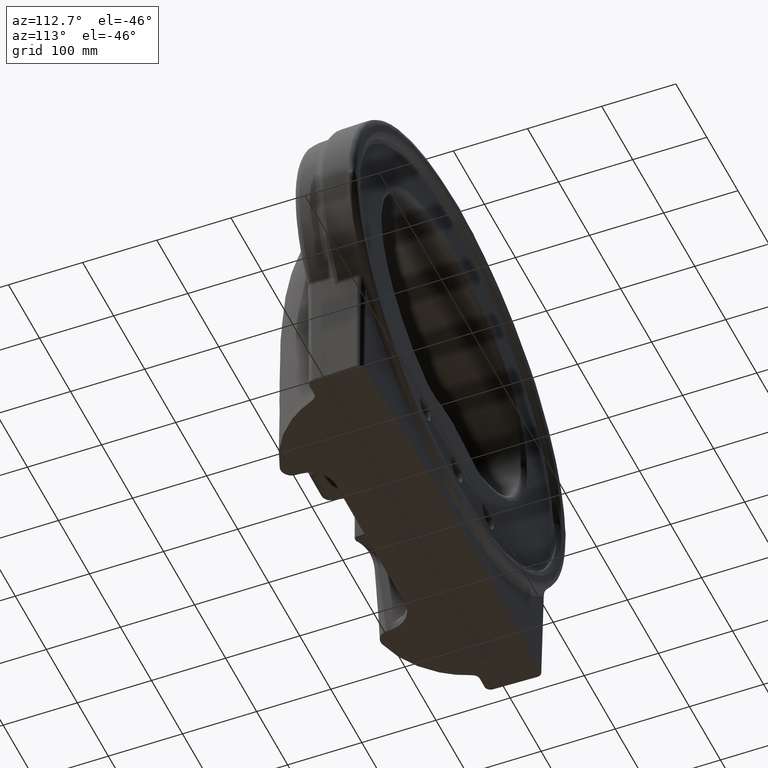
[diagram: clean part render]
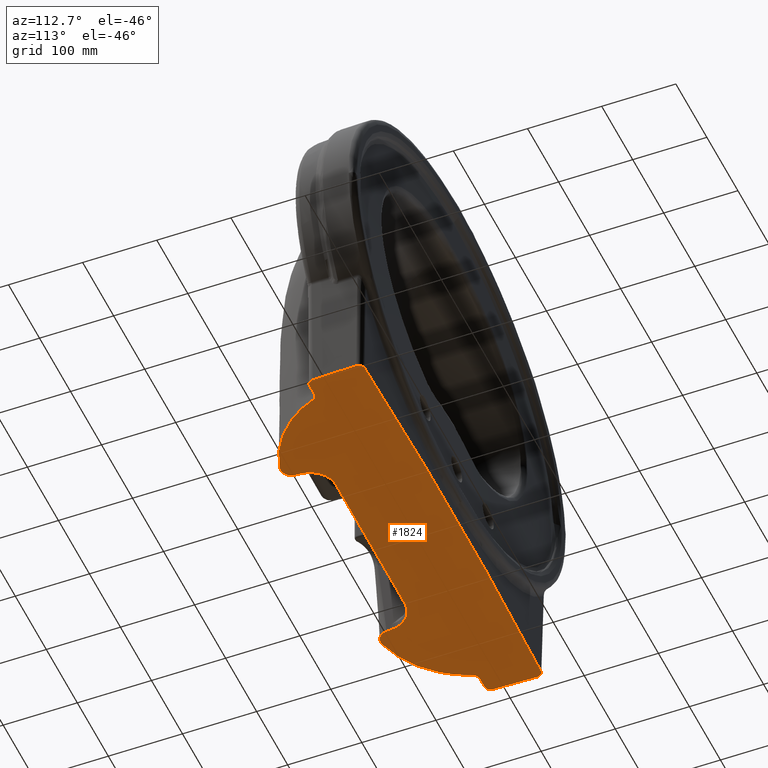
[diagram: same view with one face highlighted and labeled with its STEP entity id]
A machine part, auxiliary view. The second image highlights one B-rep face of the part: STEP entity #1824.
In plain terms, the highlighted planar face has unit normal (0, 0, -1).
Its self-contained STEP definition (entity closure, byte-faithful):
#179=ELLIPSE('',#7376,35.0485277993651,35.);
#180=ELLIPSE('',#7378,8.00121862435126,8.);
#181=ELLIPSE('',#7380,8.00121862435126,8.);
#182=ELLIPSE('',#7381,35.0485277993651,35.);
#328=PLANE('',#7382);
#404=LINE('',#18745,#553);
#417=LINE('',#21841,#566);
#427=LINE('',#22739,#576);
#428=LINE('',#22743,#577);
#429=LINE('',#22761,#578);
#430=LINE('',#22765,#579);
#431=LINE('',#22794,#580);
#553=VECTOR('',#7800,1.);
#566=VECTOR('',#7841,1.);
#576=VECTOR('',#7871,1.);
#577=VECTOR('',#7874,1.);
#578=VECTOR('',#7877,1.);
#579=VECTOR('',#7880,1.);
#580=VECTOR('',#7881,1.);
#1223=B_SPLINE_CURVE_WITH_KNOTS('',3,(#22711,#22712,#22713,#22714,#22715,
#22716,#22717,#22718,#22719,#22720),.UNSPECIFIED.,.F.,.F.,(4,2,2,2,4),(0.,
0.25,0.5,0.75,1.),.UNSPECIFIED.);
#1224=B_SPLINE_CURVE_WITH_KNOTS('',3,(#22722,#22723,#22724,#22725,#22726,
#22727,#22728,#22729,#22730),.UNSPECIFIED.,.F.,.F.,(4,1,1,1,1,1,4),(0.,
0.06984326587429,0.1592275618482,0.3379961537961,0.516764745744,0.6955333376919,
1.),.UNSPECIFIED.);
#1225=B_SPLINE_CURVE_WITH_KNOTS('',3,(#22732,#22733,#22734,#22735,#22736,
#22737),.UNSPECIFIED.,.F.,.F.,(4,2,4),(0.,0.5,1.),.UNSPECIFIED.);
#1226=B_SPLINE_CURVE_WITH_KNOTS('',3,(#22745,#22746,#22747,#22748,#22749,
#22750),.UNSPECIFIED.,.F.,.F.,(4,2,4),(0.,0.5,1.),.UNSPECIFIED.);
#1227=B_SPLINE_CURVE_WITH_KNOTS('',3,(#22754,#22755,#22756,#22757,#22758,
#22759),.UNSPECIFIED.,.F.,.F.,(4,2,4),(0.,0.5,1.),.UNSPECIFIED.);
#1228=B_SPLINE_CURVE_WITH_KNOTS('',3,(#22767,#22768,#22769,#22770,#22771,
#22772),.UNSPECIFIED.,.F.,.F.,(4,2,4),(0.,0.5,1.),.UNSPECIFIED.);
#1229=B_SPLINE_CURVE_WITH_KNOTS('',3,(#22774,#22775,#22776,#22777,#22778,
#22779,#22780,#22781,#22782),.UNSPECIFIED.,.F.,.F.,(4,1,1,1,1,1,4),(0.,
0.06984343802584,0.1592277174567,0.3379962763185,0.5167648351802,0.695533394042,
1.),.UNSPECIFIED.);
#1230=B_SPLINE_CURVE_WITH_KNOTS('',3,(#22784,#22785,#22786,#22787,#22788,
#22789,#22790,#22791,#22792,#22793),.UNSPECIFIED.,.F.,.F.,(4,2,2,2,4),(0.,
0.25,0.5,0.75,1.),.UNSPECIFIED.);
#1824=ADVANCED_FACE('',(#2289),#328,.T.);
#2289=FACE_OUTER_BOUND('',#2770,.T.);
#2770=EDGE_LOOP('',(#4154,#4155,#4156,#4157,#4158,#4159,#4160,#4161,#4162,
#4163,#4164,#4165,#4166,#4167,#4168,#4169,#4170,#4171,#4172,#4173));
#4154=ORIENTED_EDGE('',*,*,#6526,.T.);
#4155=ORIENTED_EDGE('',*,*,#6527,.T.);
#4156=ORIENTED_EDGE('',*,*,#6528,.T.);
#4157=ORIENTED_EDGE('',*,*,#6529,.T.);
#4158=ORIENTED_EDGE('',*,*,#6530,.T.);
#4159=ORIENTED_EDGE('',*,*,#6531,.T.);
#4160=ORIENTED_EDGE('',*,*,#6532,.T.);
#4161=ORIENTED_EDGE('',*,*,#6533,.F.);
#4162=ORIENTED_EDGE('',*,*,#6534,.T.);
#4163=ORIENTED_EDGE('',*,*,#6535,.F.);
#4164=ORIENTED_EDGE('',*,*,#6536,.T.);
#4165=ORIENTED_EDGE('',*,*,#6537,.F.);
#4166=ORIENTED_EDGE('',*,*,#6538,.T.);
#4167=ORIENTED_EDGE('',*,*,#6539,.F.);
#4168=ORIENTED_EDGE('',*,*,#6540,.T.);
#4169=ORIENTED_EDGE('',*,*,#6399,.T.);
#4170=ORIENTED_EDGE('',*,*,#6525,.T.);
#4171=ORIENTED_EDGE('',*,*,#6541,.F.);
#4172=ORIENTED_EDGE('',*,*,#6542,.T.);
#4173=ORIENTED_EDGE('',*,*,#6489,.F.);
#5600=VERTEX_POINT('',#18744);
#5601=VERTEX_POINT('',#18746);
#5650=VERTEX_POINT('',#21840);
#5651=VERTEX_POINT('',#21842);
#5668=VERTEX_POINT('',#22708);
#5669=VERTEX_POINT('',#22721);
#5670=VERTEX_POINT('',#22731);
#5671=VERTEX_POINT('',#22738);
#5672=VERTEX_POINT('',#22740);
#5673=VERTEX_POINT('',#22742);
#5674=VERTEX_POINT('',#22744);
#5675=VERTEX_POINT('',#22751);
#5676=VERTEX_POINT('',#22753);
#5677=VERTEX_POINT('',#22760);
#5678=VERTEX_POINT('',#22762);
#5679=VERTEX_POINT('',#22764);
#5680=VERTEX_POINT('',#22766);
#5681=VERTEX_POINT('',#22773);
#5682=VERTEX_POINT('',#22783);
#5683=VERTEX_POINT('',#22795);
#6399=EDGE_CURVE('',#5601,#5600,#404,.T.);
#6489=EDGE_CURVE('',#5650,#5651,#417,.T.);
#6525=EDGE_CURVE('',#5600,#5668,#179,.T.);
#6526=EDGE_CURVE('',#5650,#5669,#1223,.T.);
#6527=EDGE_CURVE('',#5669,#5670,#1224,.T.);
#6528=EDGE_CURVE('',#5670,#5671,#1225,.T.);
#6529=EDGE_CURVE('',#5671,#5672,#427,.T.);
#6530=EDGE_CURVE('',#5672,#5673,#180,.T.);
#6531=EDGE_CURVE('',#5673,#5674,#428,.T.);
#6532=EDGE_CURVE('',#5674,#5675,#1226,.T.);
#6533=EDGE_CURVE('',#5676,#5675,#7172,.T.);
#6534=EDGE_CURVE('',#5676,#5677,#1227,.T.);
#6535=EDGE_CURVE('',#5678,#5677,#429,.T.);
#6536=EDGE_CURVE('',#5678,#5679,#181,.T.);
#6537=EDGE_CURVE('',#5680,#5679,#430,.T.);
#6538=EDGE_CURVE('',#5680,#5681,#1228,.T.);
#6539=EDGE_CURVE('',#5682,#5681,#1229,.T.);
#6540=EDGE_CURVE('',#5682,#5601,#1230,.T.);
#6541=EDGE_CURVE('',#5683,#5668,#431,.T.);
#6542=EDGE_CURVE('',#5683,#5651,#182,.T.);
#7172=CIRCLE('',#7379,9002.499999999);
#7376=AXIS2_PLACEMENT_3D('',#22709,#7867,#7868);
#7378=AXIS2_PLACEMENT_3D('',#22741,#7872,#7873);
#7379=AXIS2_PLACEMENT_3D('',#22752,#7875,#7876);
#7380=AXIS2_PLACEMENT_3D('',#22763,#7878,#7879);
#7381=AXIS2_PLACEMENT_3D('',#22796,#7882,#7883);
#7382=AXIS2_PLACEMENT_3D('',#22797,#7884,#7885);
#7800=DIRECTION('',(-0.0524077225940177,0.998625771053656,-2.93760944746287E-009));
#7841=DIRECTION('',(0.0524075821519412,0.998625778424024,0.));
#7867=DIRECTION('',(0.,0.,1.));
#7868=DIRECTION('',(-0.986182030688047,-0.16566533236619,0.));
#7871=DIRECTION('',(-1.,-5.589523695181E-012,0.));
#7872=DIRECTION('',(0.,0.,-1.));
#7873=DIRECTION('',(1.,0.,0.));
#7874=DIRECTION('',(-0.0261809330582313,0.999657220623249,0.));
#7875=DIRECTION('',(0.,0.,1.));
#7876=DIRECTION('',(0.0315480222375593,0.999502237262578,0.));
#7877=DIRECTION('',(0.0261809330582313,0.999657220623249,0.));
#7878=DIRECTION('',(0.,0.,-1.));
#7879=DIRECTION('',(1.,0.,0.));
#7880=DIRECTION('',(1.,-5.1390893328E-012,0.));
#7881=DIRECTION('',(1.,0.,0.));
#7882=DIRECTION('',(0.,0.,1.));
#7883=DIRECTION('',(-0.986182030688052,0.165665332366158,0.));
#7884=DIRECTION('',(0.,0.,-1.));
#7885=DIRECTION('',(1.,0.,0.));
#18744=CARTESIAN_POINT('',(146.109128768837,4.03052607273993,-224.999999999999));
#18745=CARTESIAN_POINT('',(146.4426951448,-2.325559688682,-224.9999999813));
#18746=CARTESIAN_POINT('',(146.4426951448,-2.325559688682,-224.9999999813));
#21840=CARTESIAN_POINT('',(-146.4426915926,-2.325509081364,-225.));
#21841=CARTESIAN_POINT('',(-146.4426915926,-2.325509081364,-225.));
#21842=CARTESIAN_POINT('',(-146.109128758443,4.03052627031867,-225.000000000001));
#22708=CARTESIAN_POINT('',(111.125833494912,37.1841367413483,-225.));
#22709=CARTESIAN_POINT('',(111.1099665341,2.18280399784582,-225.));
#22711=CARTESIAN_POINT('',(-146.442691592574,-2.32550908136687,-225.));
#22712=CARTESIAN_POINT('',(-146.55992775252,-4.55944597108801,-225.));
#22713=CARTESIAN_POINT('',(-147.174994377273,-6.73320041055616,-225.));
#22714=CARTESIAN_POINT('',(-149.2771030927,-10.6204510074175,-225.));
#22715=CARTESIAN_POINT('',(-150.776118405382,-12.3354182910075,-225.));
#22716=CARTESIAN_POINT('',(-154.341890462893,-14.9387115399562,-225.));
#22717=CARTESIAN_POINT('',(-156.418583172794,-15.8428350427761,-225.));
#22718=CARTESIAN_POINT('',(-160.799949965118,-16.679003071336,-225.));
#22719=CARTESIAN_POINT('',(-163.046847476716,-16.6096601427931,-225.));
#22720=CARTESIAN_POINT('',(-165.21467072494,-16.0587623590588,-225.));
#22721=CARTESIAN_POINT('',(-165.2146706775,-16.05876217238,-224.9999999995));
#22722=CARTESIAN_POINT('',(-165.2146706775,-16.05876217238,-224.9999999995));
#22723=CARTESIAN_POINT('',(-168.1241118574,-15.31940102637,-224.9999999995));
#22724=CARTESIAN_POINT('',(-174.7019119647,-13.42224401724,-225.0000000003));
#22725=CARTESIAN_POINT('',(-188.3169386253,-8.31511881783,-224.9999999998));
#22726=CARTESIAN_POINT('',(-205.3527040893,0.708546872765,-225.0000000001));
#22727=CARTESIAN_POINT('',(-223.6412633788,14.87701214595,-225.));
#22728=CARTESIAN_POINT('',(-242.9029720227,35.96187813678,-225.));
#22729=CARTESIAN_POINT('',(-253.1072019815,54.30474068365,-225.));
#22730=CARTESIAN_POINT('',(-257.7415880518,66.54169415672,-225.));
#22731=CARTESIAN_POINT('',(-257.7415880518,66.54169415672,-225.));
#22732=CARTESIAN_POINT('',(-257.741588038271,66.5416941618437,-225.));
#22733=CARTESIAN_POINT('',(-258.461220521947,68.4418615326846,-225.));
#22734=CARTESIAN_POINT('',(-259.748251111954,70.0780600382829,-225.));
#22735=CARTESIAN_POINT('',(-263.058237373226,72.3684310986107,-225.));
#22736=CARTESIAN_POINT('',(-265.061607130504,73.0000000047877,-225.));
#22737=CARTESIAN_POINT('',(-267.0934794786,73.00000000025,-225.));
#22738=CARTESIAN_POINT('',(-267.0934794786,73.0000000002075,-225.));
#22739=CARTESIAN_POINT('',(-267.0934794786,73.00000000008,-225.));
#22740=CARTESIAN_POINT('',(-282.205557901346,72.9999999999989,-225.));
#22741=CARTESIAN_POINT('',(-282.205557901388,81.,-225.));
#22742=CARTESIAN_POINT('',(-290.204034707926,80.7905844135385,-225.));
#22743=CARTESIAN_POINT('',(-290.2040347079,80.79058441354,-225.));
#22744=CARTESIAN_POINT('',(-291.754764177313,140.0015341486,-224.999999999978));
#22745=CARTESIAN_POINT('',(-291.754764177316,140.0015341486,-224.999999999956));
#22746=CARTESIAN_POINT('',(-291.809883862237,142.106137196552,-224.999999999956));
#22747=CARTESIAN_POINT('',(-291.004441568016,144.186749080854,-225.));
#22748=CARTESIAN_POINT('',(-288.151011022258,147.212037273813,-225.));
#22749=CARTESIAN_POINT('',(-286.115349211314,148.139331707313,-225.));
#22750=CARTESIAN_POINT('',(-284.011070193595,148.205750609408,-225.));
#22751=CARTESIAN_POINT('',(-284.011070193597,148.205750609383,-225.));
#22752=CARTESIAN_POINT('',(0.,-8849.813140346,-225.));
#22753=CARTESIAN_POINT('',(284.011070193597,148.205750609383,-225.));
#22754=CARTESIAN_POINT('',(284.011070193595,148.205750609408,-225.));
#22755=CARTESIAN_POINT('',(286.115346907461,148.139331779988,-225.));
#22756=CARTESIAN_POINT('',(288.14601367681,147.215169680523,-225.));
#22757=CARTESIAN_POINT('',(291.001602727939,144.191918883078,-225.));
#22758=CARTESIAN_POINT('',(291.809883601554,142.106139446814,-225.000000000017));
#22759=CARTESIAN_POINT('',(291.754764177346,140.001534148599,-225.000000000017));
#22760=CARTESIAN_POINT('',(291.754764177327,140.001534148599,-225.000000000007));
#22761=CARTESIAN_POINT('',(290.2040347079,80.79058441354,-225.));
#22762=CARTESIAN_POINT('',(290.204034707893,80.7905844135385,-225.));
#22763=CARTESIAN_POINT('',(282.205557901323,81.,-225.));
#22764=CARTESIAN_POINT('',(282.205557901291,73.0000000000006,-225.));
#22765=CARTESIAN_POINT('',(267.0934794786,73.00000000008,-225.));
#22766=CARTESIAN_POINT('',(267.0934794786,73.0000000001925,-225.));
#22767=CARTESIAN_POINT('',(267.0934794786,73.00000000023,-225.));
#22768=CARTESIAN_POINT('',(265.061606851781,73.0000000050325,-225.));
#22769=CARTESIAN_POINT('',(263.075632245037,72.3759038767497,-225.));
#22770=CARTESIAN_POINT('',(259.761403549813,70.0916828155678,-225.));
#22771=CARTESIAN_POINT('',(258.461220605986,68.441861757693,-225.));
#22772=CARTESIAN_POINT('',(257.741588037198,66.5416941623465,-225.));
#22773=CARTESIAN_POINT('',(257.7415880515,66.54169415693,-225.));
#22774=CARTESIAN_POINT('',(165.2146465389,-16.05876747466,-225.0000000021));
#22775=CARTESIAN_POINT('',(168.1240955567,-15.31940486126,-225.0000000021));
#22776=CARTESIAN_POINT('',(174.7019051018,-13.42224715147,-224.9999999988));
#22777=CARTESIAN_POINT('',(188.316938251,-8.315118604474,-225.0000000008));
#22778=CARTESIAN_POINT('',(205.3527042164,0.7085468003453,-224.9999999997));
#22779=CARTESIAN_POINT('',(223.6412633452,14.87701216512,-225.0000000001));
#22780=CARTESIAN_POINT('',(242.9029720398,35.96187812704,-225.));
#22781=CARTESIAN_POINT('',(253.1072019811,54.30474068387,-225.));
#22782=CARTESIAN_POINT('',(257.7415880515,66.54169415693,-225.));
#22783=CARTESIAN_POINT('',(165.2146465389,-16.05876747466,-225.0000000021));
#22784=CARTESIAN_POINT('',(165.214646265909,-16.0587664004184,-225.));
#22785=CARTESIAN_POINT('',(163.046509644496,-16.6097424307373,-225.));
#22786=CARTESIAN_POINT('',(160.790471183995,-16.6757440554652,-225.));
#22787=CARTESIAN_POINT('',(156.447251037119,-15.8497734535013,-225.));
#22788=CARTESIAN_POINT('',(154.356592738578,-14.9462490908817,-225.));
#22789=CARTESIAN_POINT('',(150.789818502523,-12.3486492757186,-225.));
#22790=CARTESIAN_POINT('',(149.291787306456,-10.6440647221677,-225.));
#22791=CARTESIAN_POINT('',(147.171161938715,-6.72970945611492,-225.));
#22792=CARTESIAN_POINT('',(146.559955466697,-4.55991915908059,-225.));
#22793=CARTESIAN_POINT('',(146.442696403992,-2.32555962259967,-225.));
#22794=CARTESIAN_POINT('',(-111.1258334949,37.18413674135,-225.));
#22795=CARTESIAN_POINT('',(-111.125833494938,37.1841367413488,-225.));
#22796=CARTESIAN_POINT('',(-111.10996653408,2.18280399784688,-225.));
#22797=CARTESIAN_POINT('',(0.,0.,-225.));